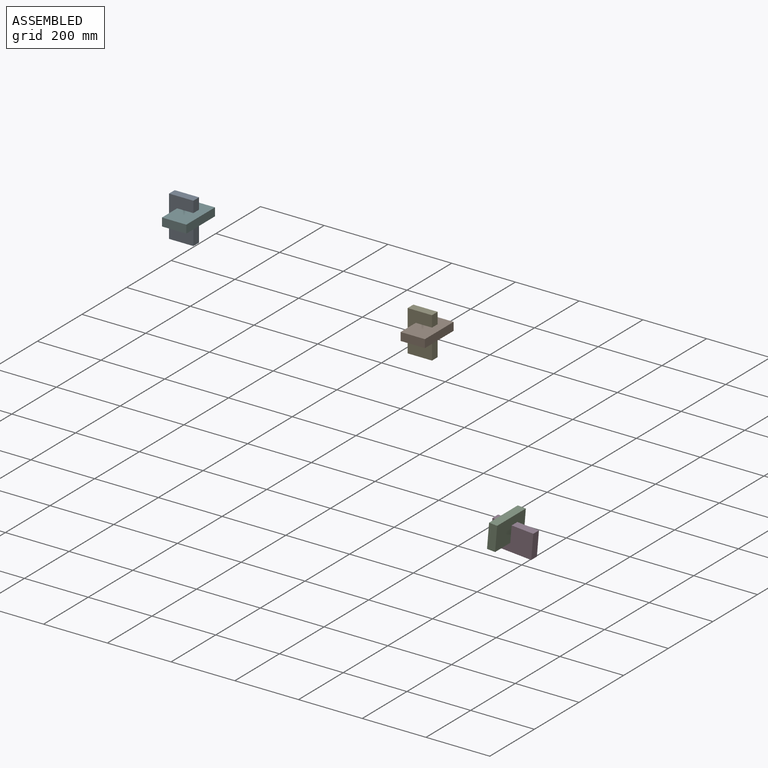
[diagram: assembled view]
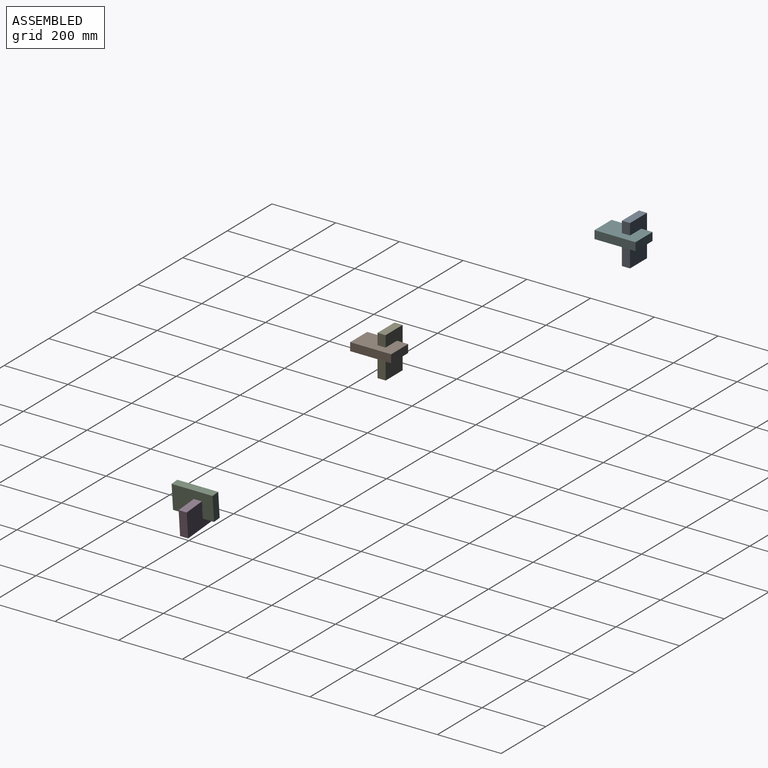
[diagram: assembled view, second angle]
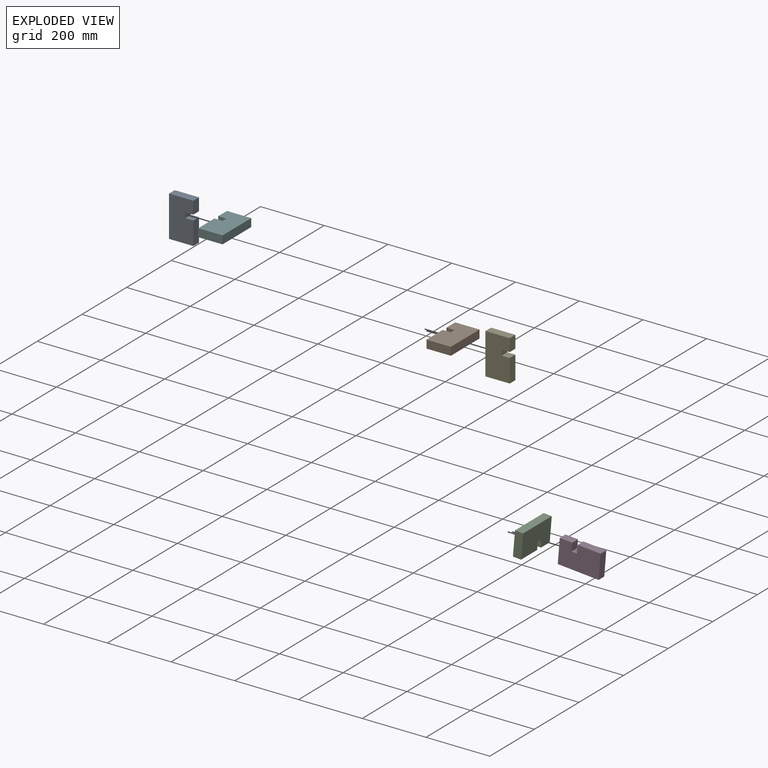
[diagram: exploded view]
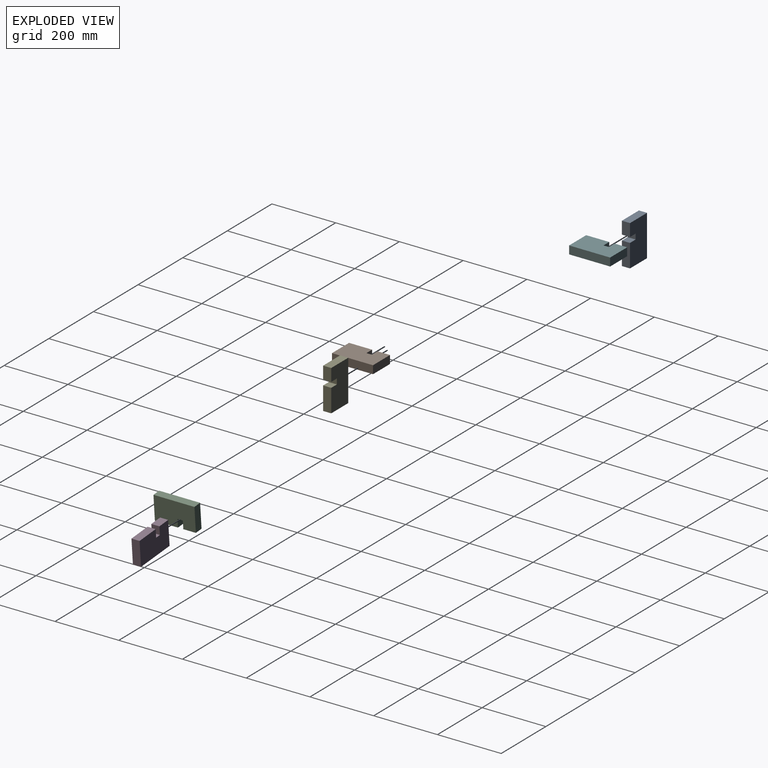
[diagram: exploded view, second angle]
ASSEMBLY  parts=6 mates=3
PART A: 10 faces, bbox 76.3x25.4x128.6 mm
  f0: plane 72.36x25.4mm, normal (1,0,0), area 1838mm2, adj f1,f3,f6,f7
  f1: plane 128.6x76.28mm, normal (0,-1,0), area 9381.9mm2, adj f0,f2,f3,f4,f5,f7,f8,f9
  f2: plane 128.6x25.4mm, normal (-1,0,0), area 3266.5mm2, adj f1,f3,f5,f6
  f3: plane 76.28x25.4mm, normal (0,0,-1), area 1937.4mm2, adj f0,f1,f2,f6
  f4: plane 39.41x25.4mm, normal (1,0,0), area 1001.1mm2, adj f1,f5,f6,f8
  f5: plane 76.28x25.4mm, normal (0,0,1), area 1937.4mm2, adj f1,f2,f4,f6
  f6: plane 128.6x76.28mm, normal (0,1,0), area 9381.9mm2, adj f0,f2,f3,f4,f5,f7,f8,f9
  f7: plane 25.4x25.4mm, normal (0,0,1), area 645.2mm2, adj f0,f1,f6,f9
  f8: plane 25.4x25.4mm, normal (0,0,-1), area 645.2mm2, adj f1,f4,f6,f9
  f9: plane 25.4x16.83mm, normal (1,0,0), area 427.4mm2, adj f1,f6,f7,f8
PART B: same geometry as A
PART C: same geometry as A
PART D: same geometry as A
PART E: same geometry as A
PART F: same geometry as A
PLACE A t=(-1120.97,53.13,179.2)mm
PLACE B rot(axis=(0,0.71,0.71),180deg) t=(73.53,-146.31,184.07)mm
PLACE C rot(axis=(-0.55,0.59,0.59),122.8deg) t=(358.2,-415.8,-14.51)mm
PLACE D rot(axis=(0,-1,0),85.2deg) t=(366.92,-379.1,-348.19)mm
PLACE E t=(-258.24,-109.61,147.38)mm
PLACE F rot(axis=(0,0.71,0.71),180deg) t=(-789.2,16.43,215.89)mm
MATE fastened C.f9 <-> D.f9  axis (-0.08,0,-1) through (356.93,-391.8,-180.87)mm
MATE fastened F.f9 <-> A.f9  axis (1,0,0) through (-955.08,40.43,203.19)mm
MATE fastened B.f9 <-> E.f9  axis (-1,0,0) through (-92.36,-122.31,171.37)mm
